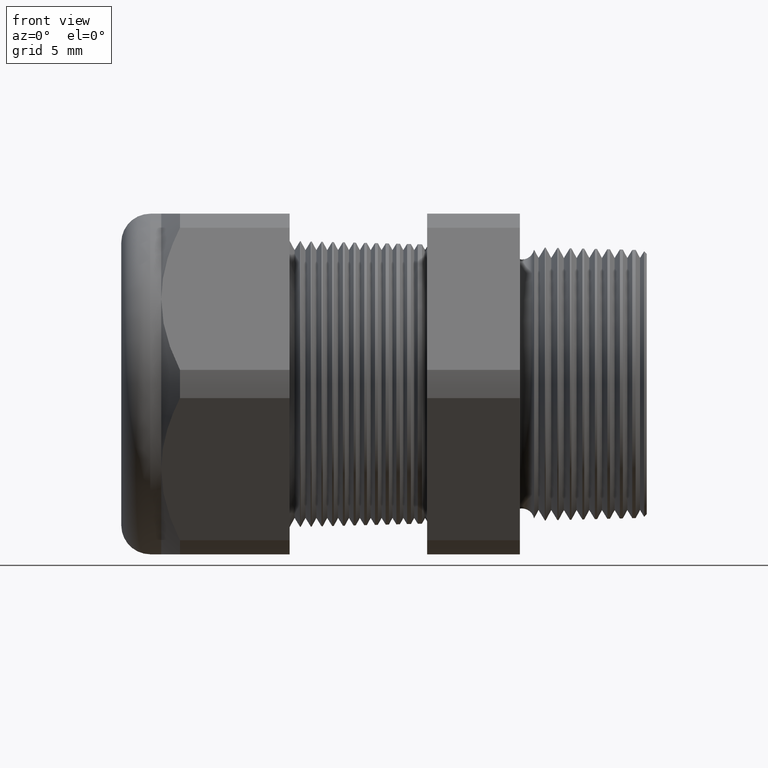
[diagram: clean part render]
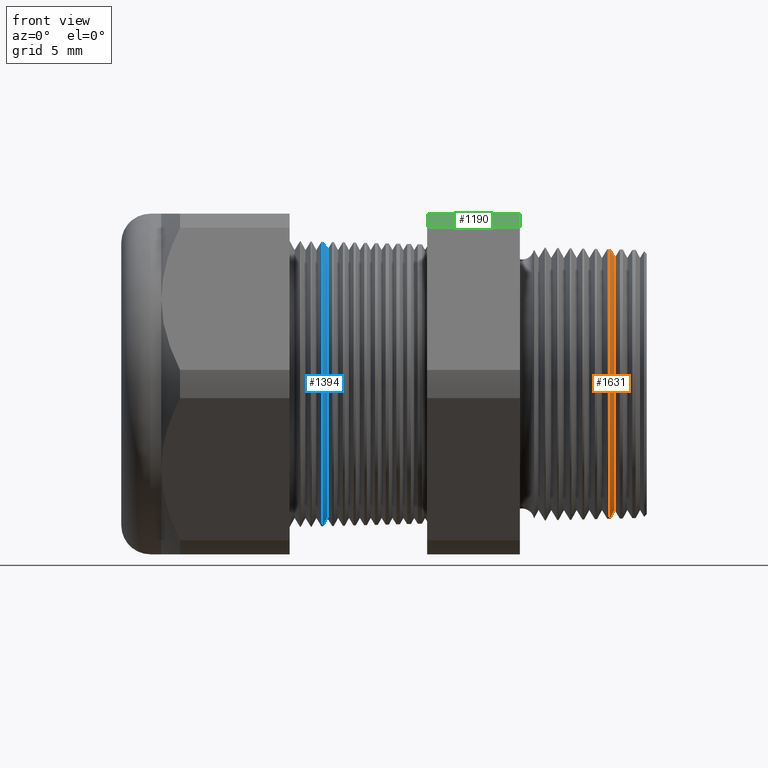
[diagram: same view with three faces highlighted in distinct colors, each labeled with its STEP entity id]
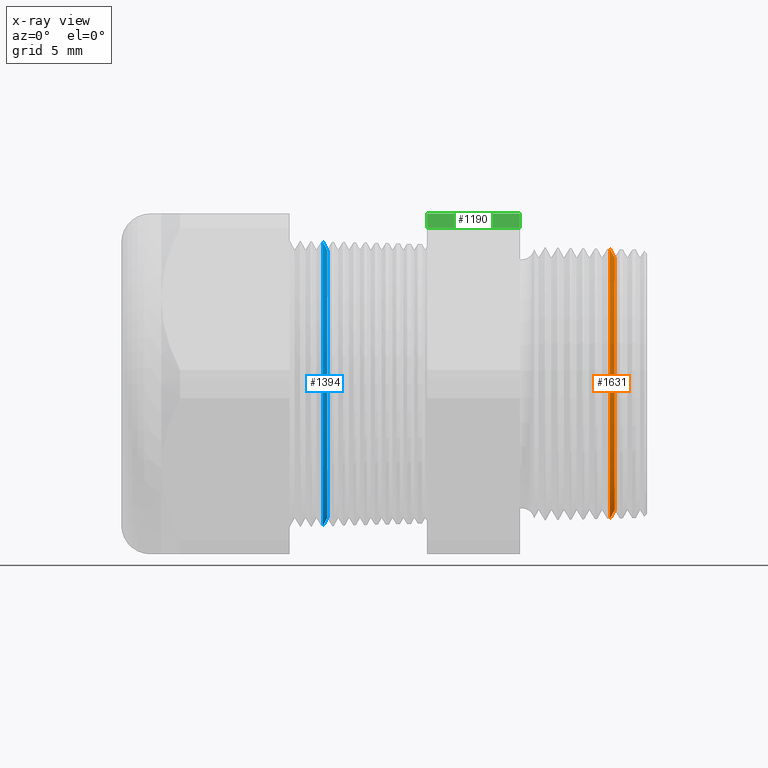
[diagram: x-ray of the same camera — body ghosted, the three highlighted faces saturated]
A machine part, front view with three faces highlighted in distinct colors.
The next image is the same camera in x-ray (body ghosted, the three faces saturated) — at least one of them is partly hidden behind the body in this view.
Their STEP definitions:

[orange] entity #1631 — the highlighted conical surface has half-angle 61.5 deg.
#49 = VERTEX_POINT ( 'NONE', #1746 ) ;
#574 = VERTEX_POINT ( 'NONE', #2810 ) ;
#631 = EDGE_CURVE ( 'NONE', #2306, #574, #2900, .T. ) ;
#799 = EDGE_CURVE ( 'NONE', #574, #855, #3218, .T. ) ;
#855 = VERTEX_POINT ( 'NONE', #3357 ) ;
#915 = EDGE_CURVE ( 'NONE', #49, #855, #3493, .T. ) ;
#1631 = ADVANCED_FACE ( 'NONE', ( #4728 ), #4727, .T. ) ;
#1632 = EDGE_LOOP ( 'NONE', ( #1633, #1634, #1636, #1637 ) ) ;
#1633 = ORIENTED_EDGE ( 'NONE', *, *, #915, .F. ) ;
#1634 = ORIENTED_EDGE ( 'NONE', *, *, #1635, .F. ) ;
#1635 = EDGE_CURVE ( 'NONE', #2306, #49, #4722, .T. ) ;
#1636 = ORIENTED_EDGE ( 'NONE', *, *, #631, .T. ) ;
#1637 = ORIENTED_EDGE ( 'NONE', *, *, #799, .T. ) ;
#1746 = CARTESIAN_POINT ( 'NONE',  ( -0.04847073567907513000, 4.407320131522376300E-017, -0.3479174816500060800 ) ) ;
#2306 = VERTEX_POINT ( 'NONE', #4779 ) ;
#2810 = CARTESIAN_POINT ( 'NONE',  ( -0.06146640013548347600, 0.0000000000000000000, 0.3718525180904780900 ) ) ;
#2892 = DIRECTION ( 'NONE',  ( -0.4771587602596195100, 0.0000000000000000000, 0.8788171126619593900 ) ) ;
#2893 = VECTOR ( 'NONE', #2892, 39.37007874015748100 ) ;
#2894 = CARTESIAN_POINT ( 'NONE',  ( -0.06499999999999996100, 0.0000000000000000000, 0.3783605994438361000 ) ) ;
#2900 = LINE ( 'NONE', #2894, #2893 ) ;
#3215 = DIRECTION ( 'NONE',  ( 0.0000000000000000000, 0.0000000000000000000, 1.000000000000000000 ) ) ;
#3216 = DIRECTION ( 'NONE',  ( 1.000000000000000000, 0.0000000000000000000, 0.0000000000000000000 ) ) ;
#3217 = AXIS2_PLACEMENT_3D ( 'NONE', #3223, #3216, #3215 ) ;
#3218 = CIRCLE ( 'NONE', #3217, 0.3718525180904780900 ) ;
#3223 = CARTESIAN_POINT ( 'NONE',  ( -0.06146640013548347600, 0.0000000000000000000, 0.0000000000000000000 ) ) ;
#3357 = CARTESIAN_POINT ( 'NONE',  ( -0.06146640013548347600, 4.555037802041384600E-017, -0.3718525180904780900 ) ) ;
#3490 = DIRECTION ( 'NONE',  ( -0.4771587602596195100, 1.076240564057387400E-016, -0.8788171126619593900 ) ) ;
#3491 = VECTOR ( 'NONE', #3490, 39.37007874015748100 ) ;
#3492 = CARTESIAN_POINT ( 'NONE',  ( -0.06499999999999996100, 4.633580970323677100E-017, -0.3783605994438361000 ) ) ;
#3493 = LINE ( 'NONE', #3492, #3491 ) ;
#4719 = DIRECTION ( 'NONE',  ( 0.0000000000000000000, 0.0000000000000000000, -1.000000000000000000 ) ) ;
#4720 = DIRECTION ( 'NONE',  ( 1.000000000000000000, 0.0000000000000000000, 0.0000000000000000000 ) ) ;
#4721 = AXIS2_PLACEMENT_3D ( 'NONE', #4726, #4720, #4719 ) ;
#4722 = CIRCLE ( 'NONE', #4721, 0.3479174816500060800 ) ;
#4723 = DIRECTION ( 'NONE',  ( 0.0000000000000000000, 0.0000000000000000000, 1.000000000000000000 ) ) ;
#4724 = DIRECTION ( 'NONE',  ( -1.000000000000000000, 0.0000000000000000000, 0.0000000000000000000 ) ) ;
#4725 = AXIS2_PLACEMENT_3D ( 'NONE', #4733, #4724, #4723 ) ;
#4726 = CARTESIAN_POINT ( 'NONE',  ( -0.04847073567907513000, 0.0000000000000000000, 0.0000000000000000000 ) ) ;
#4727 = CONICAL_SURFACE ( 'NONE', #4725, 0.3783605994438361000, 1.073377489976500100 ) ;
#4728 = FACE_OUTER_BOUND ( 'NONE', #1632, .T. ) ;
#4733 = CARTESIAN_POINT ( 'NONE',  ( -0.06499999999999996100, 0.0000000000000000000, 0.0000000000000000000 ) ) ;
#4779 = CARTESIAN_POINT ( 'NONE',  ( -0.04847073567907513000, 0.0000000000000000000, 0.3479174816500060800 ) ) ;

[blue] entity #1394 — the highlighted conical surface has half-angle 61.5 deg.
#56 = VERTEX_POINT ( 'NONE', #1804 ) ;
#409 = EDGE_CURVE ( 'NONE', #418, #56, #2506, .T. ) ;
#417 = VERTEX_POINT ( 'NONE', #2480 ) ;
#418 = VERTEX_POINT ( 'NONE', #2479 ) ;
#487 = EDGE_CURVE ( 'NONE', #417, #488, #2668, .T. ) ;
#488 = VERTEX_POINT ( 'NONE', #2664 ) ;
#865 = EDGE_CURVE ( 'NONE', #56, #488, #3344, .T. ) ;
#1394 = ADVANCED_FACE ( 'NONE', ( #4282 ), #4277, .T. ) ;
#1395 = EDGE_LOOP ( 'NONE', ( #1396, #1397, #1399, #1400 ) ) ;
#1396 = ORIENTED_EDGE ( 'NONE', *, *, #487, .F. ) ;
#1397 = ORIENTED_EDGE ( 'NONE', *, *, #1398, .F. ) ;
#1398 = EDGE_CURVE ( 'NONE', #418, #417, #4338, .T. ) ;
#1399 = ORIENTED_EDGE ( 'NONE', *, *, #409, .T. ) ;
#1400 = ORIENTED_EDGE ( 'NONE', *, *, #865, .T. ) ;
#1804 = CARTESIAN_POINT ( 'NONE',  ( -0.8541350137730544500, 0.0000000000000000000, 0.3926092762375419400 ) ) ;
#2479 = CARTESIAN_POINT ( 'NONE',  ( -0.8416586839320380200, 0.0000000000000000000, 0.3696307351718083300 ) ) ;
#2480 = CARTESIAN_POINT ( 'NONE',  ( -0.8416586839320380200, 4.667373950772513900E-017, -0.3696307351718083300 ) ) ;
#2503 = DIRECTION ( 'NONE',  ( -0.4771587602596191200, 0.0000000000000000000, 0.8788171126619595000 ) ) ;
#2504 = VECTOR ( 'NONE', #2503, 39.37007874015748100 ) ;
#2505 = CARTESIAN_POINT ( 'NONE',  ( -0.8554330708661420600, 0.0000000000000000000, 0.3950000000000000200 ) ) ;
#2506 = LINE ( 'NONE', #2505, #2504 ) ;
#2664 = CARTESIAN_POINT ( 'NONE',  ( -0.8541350137730544500, 4.808620180705062400E-017, -0.3926092762375419400 ) ) ;
#2665 = DIRECTION ( 'NONE',  ( -0.4771587602596191200, 1.076240564057387800E-016, -0.8788171126619595000 ) ) ;
#2666 = VECTOR ( 'NONE', #2665, 39.37007874015748100 ) ;
#2667 = CARTESIAN_POINT ( 'NONE',  ( -0.8554330708661420600, 4.837354856632045600E-017, -0.3950000000000000200 ) ) ;
#2668 = LINE ( 'NONE', #2667, #2666 ) ;
#3336 = DIRECTION ( 'NONE',  ( 0.0000000000000000000, 0.0000000000000000000, 1.000000000000000000 ) ) ;
#3337 = DIRECTION ( 'NONE',  ( 1.000000000000000000, 0.0000000000000000000, 0.0000000000000000000 ) ) ;
#3338 = CARTESIAN_POINT ( 'NONE',  ( -0.8541350137730544500, 0.0000000000000000000, 0.0000000000000000000 ) ) ;
#3339 = AXIS2_PLACEMENT_3D ( 'NONE', #3338, #3337, #3336 ) ;
#3344 = CIRCLE ( 'NONE', #3339, 0.3926092762375419400 ) ;
#4273 = DIRECTION ( 'NONE',  ( 0.0000000000000000000, 0.0000000000000000000, 1.000000000000000000 ) ) ;
#4274 = DIRECTION ( 'NONE',  ( -1.000000000000000000, 0.0000000000000000000, 0.0000000000000000000 ) ) ;
#4275 = CARTESIAN_POINT ( 'NONE',  ( -0.8554330708661420600, 0.0000000000000000000, 0.0000000000000000000 ) ) ;
#4276 = AXIS2_PLACEMENT_3D ( 'NONE', #4275, #4274, #4273 ) ;
#4277 = CONICAL_SURFACE ( 'NONE', #4276, 0.3950000000000000200, 1.073377489976500500 ) ;
#4282 = FACE_OUTER_BOUND ( 'NONE', #1395, .T. ) ;
#4334 = DIRECTION ( 'NONE',  ( 0.0000000000000000000, 0.0000000000000000000, -1.000000000000000000 ) ) ;
#4335 = DIRECTION ( 'NONE',  ( 1.000000000000000000, 0.0000000000000000000, 0.0000000000000000000 ) ) ;
#4336 = CARTESIAN_POINT ( 'NONE',  ( -0.8416586839320380200, 0.0000000000000000000, 0.0000000000000000000 ) ) ;
#4337 = AXIS2_PLACEMENT_3D ( 'NONE', #4336, #4335, #4334 ) ;
#4338 = CIRCLE ( 'NONE', #4337, 0.3696307351718083300 ) ;

[green] entity #1190 — the highlighted cylindrical surface (partial cylindrical patch) has radius 13.2512 mm, axis along (-1, 0, 0).
#1077 = VERTEX_POINT ( 'NONE', #3851 ) ;
#1079 = EDGE_CURVE ( 'NONE', #1077, #1080, #3850, .T. ) ;
#1080 = VERTEX_POINT ( 'NONE', #3845 ) ;
#1186 = EDGE_CURVE ( 'NONE', #1080, #1187, #4033, .T. ) ;
#1187 = VERTEX_POINT ( 'NONE', #4029 ) ;
#1190 = ADVANCED_FACE ( 'NONE', ( #4024 ), #4023, .T. ) ;
#1191 = EDGE_LOOP ( 'NONE', ( #1192, #1193, #1248, #1251 ) ) ;
#1192 = ORIENTED_EDGE ( 'NONE', *, *, #1186, .F. ) ;
#1193 = ORIENTED_EDGE ( 'NONE', *, *, #1079, .F. ) ;
#1248 = ORIENTED_EDGE ( 'NONE', *, *, #1249, .T. ) ;
#1249 = EDGE_CURVE ( 'NONE', #1077, #1250, #4126, .T. ) ;
#1250 = VERTEX_POINT ( 'NONE', #4122 ) ;
#1251 = ORIENTED_EDGE ( 'NONE', *, *, #1252, .F. ) ;
#1252 = EDGE_CURVE ( 'NONE', #1187, #1250, #4121, .T. ) ;
#3845 = CARTESIAN_POINT ( 'NONE',  ( -0.3100000000000000000, -0.2938165587564948700, 0.4310947921287048800 ) ) ;
#3846 = DIRECTION ( 'NONE',  ( 0.0000000000000000000, 0.0000000000000000000, -1.000000000000000000 ) ) ;
#3847 = DIRECTION ( 'NONE',  ( 1.000000000000000000, 0.0000000000000000000, 0.0000000000000000000 ) ) ;
#3848 = CARTESIAN_POINT ( 'NONE',  ( -0.3100000000000000000, 0.0000000000000000000, 0.0000000000000000000 ) ) ;
#3849 = AXIS2_PLACEMENT_3D ( 'NONE', #3848, #3847, #3846 ) ;
#3850 = CIRCLE ( 'NONE', #3849, 0.5217000000000000500 ) ;
#3851 = CARTESIAN_POINT ( 'NONE',  ( -0.3100000000000000000, -0.2264307620443835600, 0.4699999999999997500 ) ) ;
#4018 = DIRECTION ( 'NONE',  ( 0.0000000000000000000, 0.0000000000000000000, 1.000000000000000000 ) ) ;
#4019 = DIRECTION ( 'NONE',  ( -1.000000000000000000, 0.0000000000000000000, 0.0000000000000000000 ) ) ;
#4020 = CARTESIAN_POINT ( 'NONE',  ( 0.04000000000000011900, 0.0000000000000000000, 0.0000000000000000000 ) ) ;
#4021 = AXIS2_PLACEMENT_3D ( 'NONE', #4020, #4019, #4018 ) ;
#4023 = CYLINDRICAL_SURFACE ( 'NONE', #4021, 0.5217000000000000500 ) ;
#4024 = FACE_OUTER_BOUND ( 'NONE', #1191, .T. ) ;
#4029 = CARTESIAN_POINT ( 'NONE',  ( -0.5659055118110235500, -0.2938165587564948700, 0.4310947921287048800 ) ) ;
#4030 = DIRECTION ( 'NONE',  ( -1.000000000000000000, 0.0000000000000000000, 0.0000000000000000000 ) ) ;
#4031 = VECTOR ( 'NONE', #4030, 39.37007874015748100 ) ;
#4032 = CARTESIAN_POINT ( 'NONE',  ( 0.04000000000000011900, -0.2938165587564948700, 0.4310947921287048800 ) ) ;
#4033 = LINE ( 'NONE', #4032, #4031 ) ;
#4117 = DIRECTION ( 'NONE',  ( 0.0000000000000000000, 0.0000000000000000000, 1.000000000000000000 ) ) ;
#4118 = DIRECTION ( 'NONE',  ( -1.000000000000000000, 0.0000000000000000000, 0.0000000000000000000 ) ) ;
#4119 = CARTESIAN_POINT ( 'NONE',  ( -0.5659055118110235500, 0.0000000000000000000, 0.0000000000000000000 ) ) ;
#4120 = AXIS2_PLACEMENT_3D ( 'NONE', #4119, #4118, #4117 ) ;
#4121 = CIRCLE ( 'NONE', #4120, 0.5217000000000000500 ) ;
#4122 = CARTESIAN_POINT ( 'NONE',  ( -0.5659055118110235500, -0.2264307620443835600, 0.4699999999999997500 ) ) ;
#4123 = DIRECTION ( 'NONE',  ( -1.000000000000000000, 0.0000000000000000000, 0.0000000000000000000 ) ) ;
#4124 = VECTOR ( 'NONE', #4123, 39.37007874015748100 ) ;
#4125 = CARTESIAN_POINT ( 'NONE',  ( 0.04000000000000011900, -0.2264307620443835600, 0.4699999999999997500 ) ) ;
#4126 = LINE ( 'NONE', #4125, #4124 ) ;